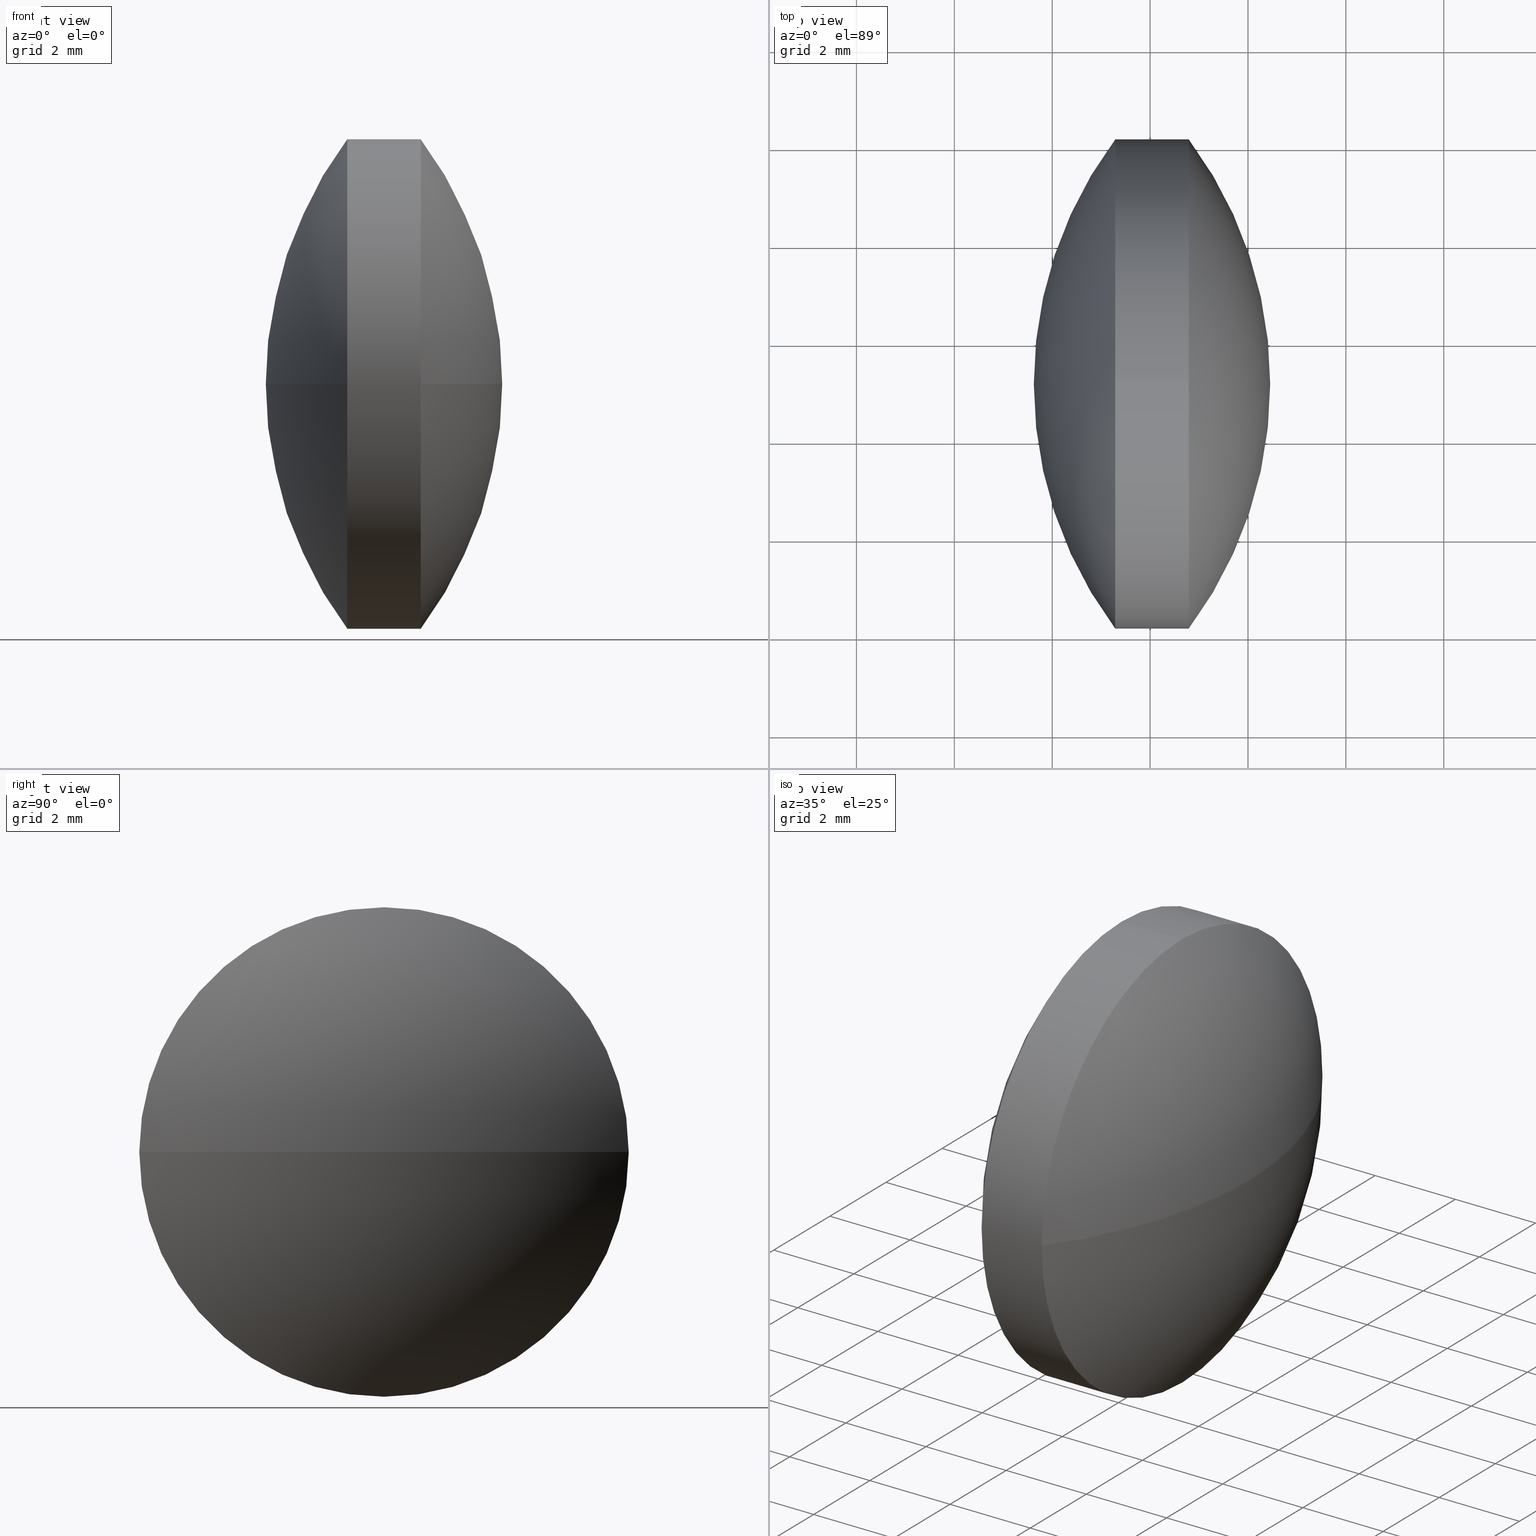
[diagram: canonical four-view strip — front | top / right | iso, engineering-drawing reading convention]
A machine part, canonical four-view strip (front | top / right | iso — engineering-drawing reading convention). The complete STEP part file that produces these views, byte-faithful:
ISO-10303-21;
HEADER;
FILE_DESCRIPTION (( 'STEP AP203' ),
    '1' );
FILE_NAME ('110092.STEP',
    '2019-07-04T02:42:35',
    ( '' ),
    ( '' ),
    'SwSTEP 2.0',
    'SolidWorks 2016',
    '' );
FILE_SCHEMA (( 'CONFIG_CONTROL_DESIGN' ));
ENDSEC;

DATA;
#1 = CIRCLE ( 'NONE', #127, 4.999999999999997300 ) ;
#2 = CARTESIAN_POINT ( 'NONE',  ( 34.78865896640257900, 24.14020197763180800, 0.0000000000000000000 ) ) ;
#3 = APPROVAL_PERSON_ORGANIZATION ( #79, #217, #319 ) ;
#4 = ORIENTED_EDGE ( 'NONE', *, *, #306, .F. ) ;
#5 = ORIENTED_EDGE ( 'NONE', *, *, #59, .T. ) ;
#6 = PRODUCT_RELATED_PRODUCT_CATEGORY ( 'detail', '', ( #80 ) ) ;
#7 = CC_DESIGN_DATE_AND_TIME_ASSIGNMENT ( #152, #211, ( #316 ) ) ;
#8 = EDGE_LOOP ( 'NONE', ( #339, #135, #100, #218 ) ) ;
#9 = LINE ( 'NONE', #320, #96 ) ;
#10 = PERSON_AND_ORGANIZATION ( #26, #81 ) ;
#11 = FACE_OUTER_BOUND ( 'NONE', #289, .T. ) ;
#12 = DIRECTION ( 'NONE',  ( 0.0000000000000000000, 0.0000000000000000000, 1.000000000000000000 ) ) ;
#13 = ADVANCED_BREP_SHAPE_REPRESENTATION ( '110092', ( #144, #69 ), #185 ) ;
#14 = COORDINATED_UNIVERSAL_TIME_OFFSET ( 8, 0, .AHEAD. ) ;
#15 = AXIS2_PLACEMENT_3D ( 'NONE', #260, #108, #161 ) ;
#16 = CC_DESIGN_APPROVAL ( #198, ( #206 ) ) ;
#17 = EDGE_LOOP ( 'NONE', ( #155, #301, #248, #227, #278, #338 ) ) ;
#18 = CARTESIAN_POINT ( 'NONE',  ( 33.28865896640257200, 19.14020197763180800, 0.0000000000000000000 ) ) ;
#19 =( NAMED_UNIT ( * ) PLANE_ANGLE_UNIT ( ) SI_UNIT ( $, .RADIAN. ) );
#20 = CIRCLE ( 'NONE', #138, 4.999999999999997300 ) ;
#21 = DATE_AND_TIME ( #160, #203 ) ;
#22 = PERSON_AND_ORGANIZATION ( #26, #81 ) ;
#23 = CIRCLE ( 'NONE', #46, 4.999999999999997300 ) ;
#24 = DIRECTION ( 'NONE',  ( 0.0000000000000000000, 0.0000000000000000000, 1.000000000000000000 ) ) ;
#25 = DATE_TIME_ROLE ( 'creation_date' ) ;
#26 = PERSON ( 'δָ��', 'δָ��', 'δָ��', ('δָ��'), ('δָ��'), ('δָ��') ) ;
#27 = ORIENTED_EDGE ( 'NONE', *, *, #256, .F. ) ;
#28 = PRODUCT_DEFINITION ( 'δ֪', '', #206, #181 ) ;
#29 = APPROVAL ( #244, 'δָ��' ) ;
#30 = VERTEX_POINT ( 'NONE', #207 ) ;
#31 = DIRECTION ( 'NONE',  ( -0.0000000000000000000, 0.0000000000000000000, 1.000000000000000000 ) ) ;
#32 = ORIENTED_EDGE ( 'NONE', *, *, #325, .F. ) ;
#33 = ORIENTED_EDGE ( 'NONE', *, *, #225, .F. ) ;
#34 = APPLICATION_CONTEXT ( 'configuration controlled 3d designs of mechanical parts and assemblies' ) ;
#35 = PERSON_AND_ORGANIZATION ( #26, #81 ) ;
#36 = CARTESIAN_POINT ( 'NONE',  ( 34.78865896640257900, 19.14020197763180800, -4.999999999999997300 ) ) ;
#37 = DIRECTION ( 'NONE',  ( 0.0000000000000000000, 1.000000000000000000, 0.0000000000000000000 ) ) ;
#38 = ADVANCED_FACE ( 'NONE', ( #172 ), #222, .T. ) ;
#39 = EDGE_CURVE ( 'NONE', #313, #106, #89, .T. ) ;
#40 = CC_DESIGN_PERSON_AND_ORGANIZATION_ASSIGNMENT ( #243, #131, ( #206 ) ) ;
#41 = PRODUCT_DEFINITION_FORMATION_WITH_SPECIFIED_SOURCE ( '�κ�', '', #80, .NOT_KNOWN. ) ;
#42 = PRODUCT_DEFINITION_SHAPE ( 'NONE', 'NONE',  #316 ) ;
#43 = PERSON_AND_ORGANIZATION ( #26, #81 ) ;
#44 = UNCERTAINTY_MEASURE_WITH_UNIT (LENGTH_MEASURE( 1.000000000000000100E-005 ), #252, 'distance_accuracy_value', 'NONE');
#45 = CC_DESIGN_SECURITY_CLASSIFICATION ( #315, ( #206 ) ) ;
#46 = AXIS2_PLACEMENT_3D ( 'NONE', #208, #247, #293 ) ;
#47 = DATE_AND_TIME ( #123, #324 ) ;
#48 = APPLICATION_PROTOCOL_DEFINITION ( 'international standard', 'config_control_design', 1994, #264 ) ;
#49 = DIRECTION ( 'NONE',  ( -1.000000000000000000, -0.0000000000000000000, -0.0000000000000000000 ) ) ;
#50 = MECHANICAL_CONTEXT ( 'NONE', #264, 'mechanical' ) ;
#51 = DIRECTION ( 'NONE',  ( -1.000000000000000000, -0.0000000000000000000, -0.0000000000000000000 ) ) ;
#52 = EDGE_CURVE ( 'NONE', #313, #228, #273, .T. ) ;
#53 = APPROVAL ( #189, 'δָ��' ) ;
#54 = CC_DESIGN_APPROVAL ( #29, ( #41 ) ) ;
#55 = CARTESIAN_POINT ( 'NONE',  ( 33.28865896640257200, 19.14020197763180800, 0.0000000000000000000 ) ) ;
#56 = PERSON_AND_ORGANIZATION ( #26, #81 ) ;
#57 = DIRECTION ( 'NONE',  ( -1.000000000000000000, -0.0000000000000000000, -0.0000000000000000000 ) ) ;
#58 = ADVANCED_FACE ( 'NONE', ( #150 ), #99, .T. ) ;
#59 = EDGE_CURVE ( 'NONE', #83, #85, #1, .T. ) ;
#60 = CARTESIAN_POINT ( 'NONE',  ( 34.78865896640257900, 19.14020197763180800, 0.0000000000000000000 ) ) ;
#61 = EDGE_LOOP ( 'NONE', ( #33, #328, #4, #27 ) ) ;
#62 = VERTEX_POINT ( 'NONE', #90 ) ;
#63 = AXIS2_PLACEMENT_3D ( 'NONE', #275, #102, #238 ) ;
#64 = CALENDAR_DATE ( 2019, 4, 7 ) ;
#65 = COORDINATED_UNIVERSAL_TIME_OFFSET ( 8, 0, .AHEAD. ) ;
#66 = FACE_OUTER_BOUND ( 'NONE', #270, .T. ) ;
#67 = CARTESIAN_POINT ( 'NONE',  ( 28.11365145889507000, 19.14020197763180800, 0.0000000000000000000 ) ) ;
#68 = AXIS2_PLACEMENT_3D ( 'NONE', #314, #51, #24 ) ;
#69 = AXIS2_PLACEMENT_3D ( 'NONE', #308, #156, #101 ) ;
#70 = PERSON_AND_ORGANIZATION ( #26, #81 ) ;
#71 = APPLICATION_PROTOCOL_DEFINITION ( 'international standard', 'config_control_design', 1994, #307 ) ;
#72 = VERTEX_POINT ( 'NONE', #344 ) ;
#73 = DATE_AND_TIME ( #303, #271 ) ;
#74 = COORDINATED_UNIVERSAL_TIME_OFFSET ( 8, 0, .AHEAD. ) ;
#75 = DIRECTION ( 'NONE',  ( -0.0000000000000000000, 0.0000000000000000000, 1.000000000000000000 ) ) ;
#76 = APPROVAL_STATUS ( 'not_yet_approved' ) ;
#77 = SPHERICAL_SURFACE ( 'NONE', #239, 8.340007507507506200 ) ;
#78 = APPLICATION_CONTEXT ( 'configuration controlled 3d designs of mechanical parts and assemblies' ) ;
#79 = PERSON_AND_ORGANIZATION ( #26, #81 ) ;
#80 = PRODUCT ( '110092', '110092', '', ( #277 ) ) ;
#81 = ORGANIZATION ( 'δָ��', 'δָ��', '' ) ;
#82 = PRODUCT ( '110092', '110092', '', ( #50 ) ) ;
#83 = VERTEX_POINT ( 'NONE', #2 ) ;
#84 = AXIS2_PLACEMENT_3D ( 'NONE', #251, #49, #109 ) ;
#85 = VERTEX_POINT ( 'NONE', #36 ) ;
#86 = DATE_AND_TIME ( #97, #173 ) ;
#87 = APPROVAL_STATUS ( 'not_yet_approved' ) ;
#88 = DATE_AND_TIME ( #64, #136 ) ;
#89 = CIRCLE ( 'NONE', #68, 4.999999999999997300 ) ;
#90 = CARTESIAN_POINT ( 'NONE',  ( 34.78865896640257900, 14.14020197763181000, -6.123233995736766300E-016 ) ) ;
#91 = DATE_AND_TIME ( #145, #133 ) ;
#92 = EDGE_LOOP ( 'NONE', ( #5, #103, #154, #32, #134, #148 ) ) ;
#93 = AXIS2_PLACEMENT_3D ( 'NONE', #242, #75, #262 ) ;
#94 = CC_DESIGN_PERSON_AND_ORGANIZATION_ASSIGNMENT ( #35, #310, ( #206 ) ) ;
#95 = CC_DESIGN_PERSON_AND_ORGANIZATION_ASSIGNMENT ( #149, #110, ( #41 ) ) ;
#96 = VECTOR ( 'NONE', #142, 1000.000000000000000 ) ;
#97 = CALENDAR_DATE ( 2019, 4, 7 ) ;
#98 = LOCAL_TIME ( 10, 42, 35.00000000000000000, #175 ) ;
#99 = CYLINDRICAL_SURFACE ( 'NONE', #105, 4.999999999999997300 ) ;
#100 = ORIENTED_EDGE ( 'NONE', *, *, #325, .T. ) ;
#101 = DIRECTION ( 'NONE',  ( 1.000000000000000000, 0.0000000000000000000, 0.0000000000000000000 ) ) ;
#102 = DIRECTION ( 'NONE',  ( 0.0000000000000000000, 0.0000000000000000000, 1.000000000000000000 ) ) ;
#103 = ORIENTED_EDGE ( 'NONE', *, *, #311, .T. ) ;
#104 = CC_DESIGN_SECURITY_CLASSIFICATION ( #146, ( #41 ) ) ;
#105 = AXIS2_PLACEMENT_3D ( 'NONE', #187, #111, #332 ) ;
#106 = VERTEX_POINT ( 'NONE', #224 ) ;
#107 = VERTEX_POINT ( 'NONE', #221 ) ;
#108 = DIRECTION ( 'NONE',  ( -0.0000000000000000000, 0.0000000000000000000, -1.000000000000000000 ) ) ;
#109 = DIRECTION ( 'NONE',  ( 0.0000000000000000000, 0.0000000000000000000, 1.000000000000000000 ) ) ;
#110 = PERSON_AND_ORGANIZATION_ROLE ( 'creator' ) ;
#111 = DIRECTION ( 'NONE',  ( -1.000000000000000000, -0.0000000000000000000, -0.0000000000000000000 ) ) ;
#112 = PERSON_AND_ORGANIZATION_ROLE ( 'design_owner' ) ;
#113 = APPROVAL_STATUS ( 'not_yet_approved' ) ;
#114 = CC_DESIGN_APPROVAL ( #299, ( #146 ) ) ;
#115 = AXIS2_PLACEMENT_3D ( 'NONE', #151, #326, #235 ) ;
#116 = DIRECTION ( 'NONE',  ( 0.0000000000000000000, 0.0000000000000000000, 1.000000000000000000 ) ) ;
#117 = PERSON_AND_ORGANIZATION ( #26, #81 ) ;
#118 = DIRECTION ( 'NONE',  ( 0.0000000000000000000, 0.0000000000000000000, 1.000000000000000000 ) ) ;
#119 = DIRECTION ( 'NONE',  ( -1.000000000000000000, -0.0000000000000000000, -0.0000000000000000000 ) ) ;
#120 = ADVANCED_FACE ( 'NONE', ( #66 ), #212, .T. ) ;
#121 = CC_DESIGN_PERSON_AND_ORGANIZATION_ASSIGNMENT ( #22, #285, ( #28 ) ) ;
#122 = AXIS2_PLACEMENT_3D ( 'NONE', #202, #257, #304 ) ;
#123 = CALENDAR_DATE ( 2019, 4, 7 ) ;
#124 = DIRECTION ( 'NONE',  ( 0.0000000000000000000, 1.000000000000000000, 0.0000000000000000000 ) ) ;
#125 = DIRECTION ( 'NONE',  ( -0.0000000000000000000, 0.0000000000000000000, -1.000000000000000000 ) ) ;
#126 = CC_DESIGN_PERSON_AND_ORGANIZATION_ASSIGNMENT ( #186, #112, ( #82 ) ) ;
#127 = AXIS2_PLACEMENT_3D ( 'NONE', #213, #119, #296 ) ;
#128 = PERSON_AND_ORGANIZATION_ROLE ( 'design_owner' ) ;
#129 = CLOSED_SHELL ( 'NONE', ( #297, #196, #120, #38, #197, #58 ) ) ;
#130 = COORDINATED_UNIVERSAL_TIME_OFFSET ( 8, 0, .AHEAD. ) ;
#131 = PERSON_AND_ORGANIZATION_ROLE ( 'creator' ) ;
#132 = APPROVAL_ROLE ( '' ) ;
#133 = LOCAL_TIME ( 10, 42, 35.00000000000000000, #274 ) ;
#134 = ORIENTED_EDGE ( 'NONE', *, *, #345, .F. ) ;
#135 = ORIENTED_EDGE ( 'NONE', *, *, #322, .T. ) ;
#136 = LOCAL_TIME ( 10, 42, 35.00000000000000000, #318 ) ;
#137 = CC_DESIGN_DATE_AND_TIME_ASSIGNMENT ( #73, #25, ( #28 ) ) ;
#138 = AXIS2_PLACEMENT_3D ( 'NONE', #60, #194, #176 ) ;
#139 = DIRECTION ( 'NONE',  ( -1.000000000000000000, -0.0000000000000000000, -0.0000000000000000000 ) ) ;
#140 = APPROVAL_DATE_TIME ( #272, #299 ) ;
#141 = CARTESIAN_POINT ( 'NONE',  ( 31.22259895702250500, 19.14020197763180800, 4.999999999999997300 ) ) ;
#142 = DIRECTION ( 'NONE',  ( -1.000000000000000000, -0.0000000000000000000, -0.0000000000000000000 ) ) ;
#143 = CIRCLE ( 'NONE', #265, 4.999999999999997300 ) ;
#144 = MANIFOLD_SOLID_BREP ( '��ת1', #129 ) ;
#145 = CALENDAR_DATE ( 2019, 4, 7 ) ;
#146 = SECURITY_CLASSIFICATION ( '', '', #331 ) ;
#147 = AXIS2_PLACEMENT_3D ( 'NONE', #195, #321, #336 ) ;
#148 = ORIENTED_EDGE ( 'NONE', *, *, #306, .T. ) ;
#149 = PERSON_AND_ORGANIZATION ( #26, #81 ) ;
#150 = FACE_OUTER_BOUND ( 'NONE', #17, .T. ) ;
#151 = CARTESIAN_POINT ( 'NONE',  ( 39.96366647391008800, 19.14020197763180400, 0.0000000000000000000 ) ) ;
#152 = DATE_AND_TIME ( #337, #226 ) ;
#153 = CARTESIAN_POINT ( 'NONE',  ( 31.62365896640257600, 19.14020197763180400, 0.0000000000000000000 ) ) ;
#154 = ORIENTED_EDGE ( 'NONE', *, *, #39, .F. ) ;
#155 = ORIENTED_EDGE ( 'NONE', *, *, #311, .F. ) ;
#156 = DIRECTION ( 'NONE',  ( 0.0000000000000000000, 0.0000000000000000000, 1.000000000000000000 ) ) ;
#157 = CC_DESIGN_PERSON_AND_ORGANIZATION_ASSIGNMENT ( #329, #162, ( #315 ) ) ;
#158 = AXIS2_PLACEMENT_3D ( 'NONE', #341, #31, #291 ) ;
#159 = CIRCLE ( 'NONE', #279, 4.999999999999997300 ) ;
#160 = CALENDAR_DATE ( 2019, 4, 7 ) ;
#161 = DIRECTION ( 'NONE',  ( 0.0000000000000000000, 1.000000000000000000, 0.0000000000000000000 ) ) ;
#162 = PERSON_AND_ORGANIZATION_ROLE ( 'classification_officer' ) ;
#163 = APPROVAL_PERSON_ORGANIZATION ( #117, #237, #263 ) ;
#164 = CIRCLE ( 'NONE', #115, 8.340007507507511500 ) ;
#165 = APPROVAL_ROLE ( '' ) ;
#166 = PERSON_AND_ORGANIZATION ( #26, #81 ) ;
#167 = ORIENTED_EDGE ( 'NONE', *, *, #52, .F. ) ;
#168 = CC_DESIGN_APPROVAL ( #237, ( #28 ) ) ;
#169 = AXIS2_PLACEMENT_3D ( 'NONE', #343, #220, #118 ) ;
#170 = CIRCLE ( 'NONE', #158, 8.340007507507504400 ) ;
#171 = VECTOR ( 'NONE', #57, 1000.000000000000000 ) ;
#172 = FACE_OUTER_BOUND ( 'NONE', #8, .T. ) ;
#173 = LOCAL_TIME ( 10, 42, 35.00000000000000000, #65 ) ;
#174 = APPLICATION_PROTOCOL_DEFINITION ( 'international standard', 'config_control_design', 1994, #34 ) ;
#175 = COORDINATED_UNIVERSAL_TIME_OFFSET ( 8, 0, .AHEAD. ) ;
#176 = DIRECTION ( 'NONE',  ( 0.0000000000000000000, 0.0000000000000000000, 1.000000000000000000 ) ) ;
#177 = CARTESIAN_POINT ( 'NONE',  ( 39.96366647391008800, 19.14020197763180400, 0.0000000000000000000 ) ) ;
#178 = ORIENTED_EDGE ( 'NONE', *, *, #39, .T. ) ;
#179 = EDGE_CURVE ( 'NONE', #85, #62, #284, .T. ) ;
#180 = PRODUCT_RELATED_PRODUCT_CATEGORY ( 'detail', '', ( #82 ) ) ;
#181 = DESIGN_CONTEXT ( 'detailed design', #78, 'design' ) ;
#182 = DATE_AND_TIME ( #259, #98 ) ;
#183 = DIRECTION ( 'NONE',  ( -1.000000000000000000, -0.0000000000000000000, -0.0000000000000000000 ) ) ;
#184 = CC_DESIGN_DATE_AND_TIME_ASSIGNMENT ( #88, #330, ( #315 ) ) ;
#185 =( GEOMETRIC_REPRESENTATION_CONTEXT ( 3 ) GLOBAL_UNCERTAINTY_ASSIGNED_CONTEXT ( ( #44 ) ) GLOBAL_UNIT_ASSIGNED_CONTEXT ( ( #252, #19, #258 ) ) REPRESENTATION_CONTEXT ( 'NONE', 'WORKASPACE' ) );
#186 = PERSON_AND_ORGANIZATION ( #26, #81 ) ;
#187 = CARTESIAN_POINT ( 'NONE',  ( 31.22259895702250500, 19.14020197763180800, 0.0000000000000000000 ) ) ;
#188 = APPROVAL_PERSON_ORGANIZATION ( #43, #198, #132 ) ;
#189 = APPROVAL_STATUS ( 'not_yet_approved' ) ;
#190 = APPLICATION_PROTOCOL_DEFINITION ( 'international standard', 'config_control_design', 1994, #78 ) ;
#191 = APPROVAL_DATE_TIME ( #182, #237 ) ;
#192 = CARTESIAN_POINT ( 'NONE',  ( 33.28865896640257200, 19.14020197763180800, 0.0000000000000000000 ) ) ;
#193 = CARTESIAN_POINT ( 'NONE',  ( 34.78865896640257900, 19.14020197763180800, 4.999999999999997300 ) ) ;
#194 = DIRECTION ( 'NONE',  ( -1.000000000000000000, -0.0000000000000000000, -0.0000000000000000000 ) ) ;
#195 = CARTESIAN_POINT ( 'NONE',  ( 28.11365145889507000, 19.14020197763180800, 0.0000000000000000000 ) ) ;
#196 = ADVANCED_FACE ( 'NONE', ( #11 ), #333, .T. ) ;
#197 = ADVANCED_FACE ( 'NONE', ( #295 ), #77, .T. ) ;
#198 = APPROVAL ( #283, 'δָ��' ) ;
#199 = ORIENTED_EDGE ( 'NONE', *, *, #334, .F. ) ;
#200 = COORDINATED_UNIVERSAL_TIME_OFFSET ( 8, 0, .AHEAD. ) ;
#201 = PRODUCT_DEFINITION_SHAPE ( 'NONE', 'NONE',  #28 ) ;
#202 = CARTESIAN_POINT ( 'NONE',  ( 28.11365145889507000, 19.14020197763180800, 0.0000000000000000000 ) ) ;
#203 = LOCAL_TIME ( 10, 42, 35.00000000000000000, #14 ) ;
#204 = ORIENTED_EDGE ( 'NONE', *, *, #179, .F. ) ;
#205 = LOCAL_TIME ( 10, 42, 35.00000000000000000, #200 ) ;
#206 = PRODUCT_DEFINITION_FORMATION_WITH_SPECIFIED_SOURCE ( '�κ�', '', #82, .NOT_KNOWN. ) ;
#207 = CARTESIAN_POINT ( 'NONE',  ( 33.28865896640257200, 19.14020197763180800, 4.999999999999997300 ) ) ;
#208 = CARTESIAN_POINT ( 'NONE',  ( 34.78865896640257900, 19.14020197763180800, 0.0000000000000000000 ) ) ;
#209 = LOCAL_TIME ( 10, 42, 35.00000000000000000, #74 ) ;
#210 = SECURITY_CLASSIFICATION_LEVEL ( 'unclassified' ) ;
#211 = DATE_TIME_ROLE ( 'creation_date' ) ;
#212 = SPHERICAL_SURFACE ( 'NONE', #323, 8.340007507507511500 ) ;
#213 = CARTESIAN_POINT ( 'NONE',  ( 34.78865896640257900, 19.14020197763180800, 0.0000000000000000000 ) ) ;
#214 = PERSON_AND_ORGANIZATION_ROLE ( 'classification_officer' ) ;
#215 = APPROVAL_DATE_TIME ( #91, #217 ) ;
#216 = CC_DESIGN_APPROVAL ( #53, ( #315 ) ) ;
#217 = APPROVAL ( #87, 'δָ��' ) ;
#218 = ORIENTED_EDGE ( 'NONE', *, *, #52, .T. ) ;
#219 = PERSON_AND_ORGANIZATION ( #26, #81 ) ;
#220 = DIRECTION ( 'NONE',  ( -1.000000000000000000, -0.0000000000000000000, -0.0000000000000000000 ) ) ;
#221 = CARTESIAN_POINT ( 'NONE',  ( 36.45365896640257800, 19.14020197763180800, 0.0000000000000000000 ) ) ;
#222 = SPHERICAL_SURFACE ( 'NONE', #15, 8.340007507507511500 ) ;
#223 = CARTESIAN_POINT ( 'NONE',  ( 33.28865896640257200, 24.14020197763180400, 0.0000000000000000000 ) ) ;
#224 = CARTESIAN_POINT ( 'NONE',  ( 33.28865896640257200, 19.14020197763180800, -4.999999999999997300 ) ) ;
#225 = EDGE_CURVE ( 'NONE', #107, #62, #232, .T. ) ;
#226 = LOCAL_TIME ( 10, 42, 35.00000000000000000, #288 ) ;
#227 = ORIENTED_EDGE ( 'NONE', *, *, #345, .T. ) ;
#228 = VERTEX_POINT ( 'NONE', #153 ) ;
#229 = CIRCLE ( 'NONE', #335, 4.999999999999997300 ) ;
#230 = PERSON_AND_ORGANIZATION ( #26, #81 ) ;
#231 = APPROVAL_DATE_TIME ( #255, #198 ) ;
#232 = CIRCLE ( 'NONE', #122, 8.340007507507508000 ) ;
#233 = DESIGN_CONTEXT ( 'detailed design', #34, 'design' ) ;
#234 = PERSON_AND_ORGANIZATION ( #26, #81 ) ;
#235 = DIRECTION ( 'NONE',  ( 0.0000000000000000000, 1.000000000000000000, 1.224646799147353200E-016 ) ) ;
#236 = FACE_OUTER_BOUND ( 'NONE', #92, .T. ) ;
#237 = APPROVAL ( #113, 'δָ��' ) ;
#238 = DIRECTION ( 'NONE',  ( 1.000000000000000000, 0.0000000000000000000, 0.0000000000000000000 ) ) ;
#239 = AXIS2_PLACEMENT_3D ( 'NONE', #67, #125, #124 ) ;
#240 = ORIENTED_EDGE ( 'NONE', *, *, #246, .T. ) ;
#241 = ORIENTED_EDGE ( 'NONE', *, *, #59, .F. ) ;
#242 = CARTESIAN_POINT ( 'NONE',  ( 39.96366647391008800, 19.14020197763180400, 0.0000000000000000000 ) ) ;
#243 = PERSON_AND_ORGANIZATION ( #26, #81 ) ;
#244 = APPROVAL_STATUS ( 'not_yet_approved' ) ;
#245 = PERSON_AND_ORGANIZATION_ROLE ( 'creator' ) ;
#246 = EDGE_CURVE ( 'NONE', #106, #72, #143, .T. ) ;
#247 = DIRECTION ( 'NONE',  ( -1.000000000000000000, -0.0000000000000000000, -0.0000000000000000000 ) ) ;
#248 = ORIENTED_EDGE ( 'NONE', *, *, #256, .T. ) ;
#249 = DIRECTION ( 'NONE',  ( -1.000000000000000000, -0.0000000000000000000, -0.0000000000000000000 ) ) ;
#250 = SHAPE_DEFINITION_REPRESENTATION ( #201, #13 ) ;
#251 = CARTESIAN_POINT ( 'NONE',  ( 34.78865896640257900, 19.14020197763180800, 0.0000000000000000000 ) ) ;
#252 =( LENGTH_UNIT ( ) NAMED_UNIT ( * ) SI_UNIT ( .MILLI., .METRE. ) );
#253 = CC_DESIGN_DATE_AND_TIME_ASSIGNMENT ( #86, #282, ( #146 ) ) ;
#254 = CC_DESIGN_PERSON_AND_ORGANIZATION_ASSIGNMENT ( #70, #245, ( #316 ) ) ;
#255 = DATE_AND_TIME ( #294, #205 ) ;
#256 = EDGE_CURVE ( 'NONE', #62, #266, #23, .T. ) ;
#257 = DIRECTION ( 'NONE',  ( 0.0000000000000000000, 1.224646799147353200E-016, -1.000000000000000000 ) ) ;
#258 =( NAMED_UNIT ( * ) SI_UNIT ( $, .STERADIAN. ) SOLID_ANGLE_UNIT ( ) );
#259 = CALENDAR_DATE ( 2019, 4, 7 ) ;
#260 = CARTESIAN_POINT ( 'NONE',  ( 39.96366647391008800, 19.14020197763180400, 0.0000000000000000000 ) ) ;
#261 = APPROVAL_ROLE ( '' ) ;
#262 = DIRECTION ( 'NONE',  ( 1.000000000000000000, 0.0000000000000000000, 0.0000000000000000000 ) ) ;
#263 = APPROVAL_ROLE ( '' ) ;
#264 = APPLICATION_CONTEXT ( 'configuration controlled 3d designs of mechanical parts and assemblies' ) ;
#265 = AXIS2_PLACEMENT_3D ( 'NONE', #18, #183, #12 ) ;
#266 = VERTEX_POINT ( 'NONE', #193 ) ;
#267 = APPROVAL_PERSON_ORGANIZATION ( #56, #53, #312 ) ;
#268 = DIRECTION ( 'NONE',  ( -0.0000000000000000000, 0.0000000000000000000, -1.000000000000000000 ) ) ;
#269 = APPROVAL_PERSON_ORGANIZATION ( #166, #29, #165 ) ;
#270 = EDGE_LOOP ( 'NONE', ( #178, #240, #298, #167 ) ) ;
#271 = LOCAL_TIME ( 10, 42, 35.00000000000000000, #340 ) ;
#272 = DATE_AND_TIME ( #342, #209 ) ;
#273 = CIRCLE ( 'NONE', #93, 8.340007507507511500 ) ;
#274 = COORDINATED_UNIVERSAL_TIME_OFFSET ( 8, 0, .AHEAD. ) ;
#275 = CARTESIAN_POINT ( 'NONE',  ( 0.0000000000000000000, 0.0000000000000000000, 0.0000000000000000000 ) ) ;
#276 = CC_DESIGN_PERSON_AND_ORGANIZATION_ASSIGNMENT ( #230, #214, ( #146 ) ) ;
#277 = MECHANICAL_CONTEXT ( 'NONE', #307, 'mechanical' ) ;
#278 = ORIENTED_EDGE ( 'NONE', *, *, #322, .F. ) ;
#279 = AXIS2_PLACEMENT_3D ( 'NONE', #55, #249, #116 ) ;
#280 = CYLINDRICAL_SURFACE ( 'NONE', #169, 4.999999999999997300 ) ;
#281 = APPROVAL_PERSON_ORGANIZATION ( #10, #299, #261 ) ;
#282 = DATE_TIME_ROLE ( 'classification_date' ) ;
#283 = APPROVAL_STATUS ( 'not_yet_approved' ) ;
#284 = CIRCLE ( 'NONE', #84, 4.999999999999997300 ) ;
#285 = PERSON_AND_ORGANIZATION_ROLE ( 'creator' ) ;
#286 = EDGE_CURVE ( 'NONE', #72, #228, #164, .T. ) ;
#287 = PERSON_AND_ORGANIZATION_ROLE ( 'design_supplier' ) ;
#288 = COORDINATED_UNIVERSAL_TIME_OFFSET ( 8, 0, .AHEAD. ) ;
#289 = EDGE_LOOP ( 'NONE', ( #199, #302, #204, #241 ) ) ;
#290 = LINE ( 'NONE', #141, #171 ) ;
#291 = DIRECTION ( 'NONE',  ( 1.000000000000000000, 0.0000000000000000000, 0.0000000000000000000 ) ) ;
#292 = APPROVAL_DATE_TIME ( #21, #29 ) ;
#293 = DIRECTION ( 'NONE',  ( 0.0000000000000000000, 0.0000000000000000000, 1.000000000000000000 ) ) ;
#294 = CALENDAR_DATE ( 2019, 4, 7 ) ;
#295 = FACE_OUTER_BOUND ( 'NONE', #61, .T. ) ;
#296 = DIRECTION ( 'NONE',  ( 0.0000000000000000000, 0.0000000000000000000, 1.000000000000000000 ) ) ;
#297 = ADVANCED_FACE ( 'NONE', ( #236 ), #280, .T. ) ;
#298 = ORIENTED_EDGE ( 'NONE', *, *, #286, .T. ) ;
#299 = APPROVAL ( #76, 'δָ��' ) ;
#300 = CC_DESIGN_PERSON_AND_ORGANIZATION_ASSIGNMENT ( #234, #128, ( #80 ) ) ;
#301 = ORIENTED_EDGE ( 'NONE', *, *, #179, .T. ) ;
#302 = ORIENTED_EDGE ( 'NONE', *, *, #225, .T. ) ;
#303 = CALENDAR_DATE ( 2019, 4, 7 ) ;
#304 = DIRECTION ( 'NONE',  ( 0.0000000000000000000, 1.000000000000000000, 1.224646799147353000E-016 ) ) ;
#305 = CC_DESIGN_PERSON_AND_ORGANIZATION_ASSIGNMENT ( #219, #287, ( #41 ) ) ;
#306 = EDGE_CURVE ( 'NONE', #266, #83, #20, .T. ) ;
#307 = APPLICATION_CONTEXT ( 'configuration controlled 3d designs of mechanical parts and assemblies' ) ;
#308 = CARTESIAN_POINT ( 'NONE',  ( 0.0000000000000000000, 0.0000000000000000000, 0.0000000000000000000 ) ) ;
#309 = APPROVAL_DATE_TIME ( #47, #53 ) ;
#310 = PERSON_AND_ORGANIZATION_ROLE ( 'design_supplier' ) ;
#311 = EDGE_CURVE ( 'NONE', #85, #106, #9, .T. ) ;
#312 = APPROVAL_ROLE ( '' ) ;
#313 = VERTEX_POINT ( 'NONE', #223 ) ;
#314 = CARTESIAN_POINT ( 'NONE',  ( 33.28865896640257200, 19.14020197763180800, 0.0000000000000000000 ) ) ;
#315 = SECURITY_CLASSIFICATION ( '', '', #210 ) ;
#316 = PRODUCT_DEFINITION ( 'δ֪', '', #41, #233 ) ;
#317 = DIRECTION ( 'NONE',  ( 0.0000000000000000000, 0.0000000000000000000, 1.000000000000000000 ) ) ;
#318 = COORDINATED_UNIVERSAL_TIME_OFFSET ( 8, 0, .AHEAD. ) ;
#319 = APPROVAL_ROLE ( '' ) ;
#320 = CARTESIAN_POINT ( 'NONE',  ( 31.22259895702250500, 19.14020197763180800, -4.999999999999997300 ) ) ;
#321 = DIRECTION ( 'NONE',  ( -0.0000000000000000000, 0.0000000000000000000, -1.000000000000000000 ) ) ;
#322 = EDGE_CURVE ( 'NONE', #72, #30, #159, .T. ) ;
#323 = AXIS2_PLACEMENT_3D ( 'NONE', #177, #268, #37 ) ;
#324 = LOCAL_TIME ( 10, 42, 35.00000000000000000, #130 ) ;
#325 = EDGE_CURVE ( 'NONE', #30, #313, #229, .T. ) ;
#326 = DIRECTION ( 'NONE',  ( 0.0000000000000000000, 1.224646799147353200E-016, -1.000000000000000000 ) ) ;
#327 = CC_DESIGN_APPROVAL ( #217, ( #316 ) ) ;
#328 = ORIENTED_EDGE ( 'NONE', *, *, #334, .T. ) ;
#329 = PERSON_AND_ORGANIZATION ( #26, #81 ) ;
#330 = DATE_TIME_ROLE ( 'classification_date' ) ;
#331 = SECURITY_CLASSIFICATION_LEVEL ( 'unclassified' ) ;
#332 = DIRECTION ( 'NONE',  ( 0.0000000000000000000, 0.0000000000000000000, 1.000000000000000000 ) ) ;
#333 = SPHERICAL_SURFACE ( 'NONE', #147, 8.340007507507506200 ) ;
#334 = EDGE_CURVE ( 'NONE', #107, #83, #170, .T. ) ;
#335 = AXIS2_PLACEMENT_3D ( 'NONE', #192, #139, #317 ) ;
#336 = DIRECTION ( 'NONE',  ( 0.0000000000000000000, 1.000000000000000000, 0.0000000000000000000 ) ) ;
#337 = CALENDAR_DATE ( 2019, 4, 7 ) ;
#338 = ORIENTED_EDGE ( 'NONE', *, *, #246, .F. ) ;
#339 = ORIENTED_EDGE ( 'NONE', *, *, #286, .F. ) ;
#340 = COORDINATED_UNIVERSAL_TIME_OFFSET ( 8, 0, .AHEAD. ) ;
#341 = CARTESIAN_POINT ( 'NONE',  ( 28.11365145889507000, 19.14020197763180800, 0.0000000000000000000 ) ) ;
#342 = CALENDAR_DATE ( 2019, 4, 7 ) ;
#343 = CARTESIAN_POINT ( 'NONE',  ( 31.22259895702250500, 19.14020197763180800, 0.0000000000000000000 ) ) ;
#344 = CARTESIAN_POINT ( 'NONE',  ( 33.28865896640257200, 14.14020197763180800, -6.123233995736764300E-016 ) ) ;
#345 = EDGE_CURVE ( 'NONE', #266, #30, #290, .T. ) ;
ENDSEC;
END-ISO-10303-21;
